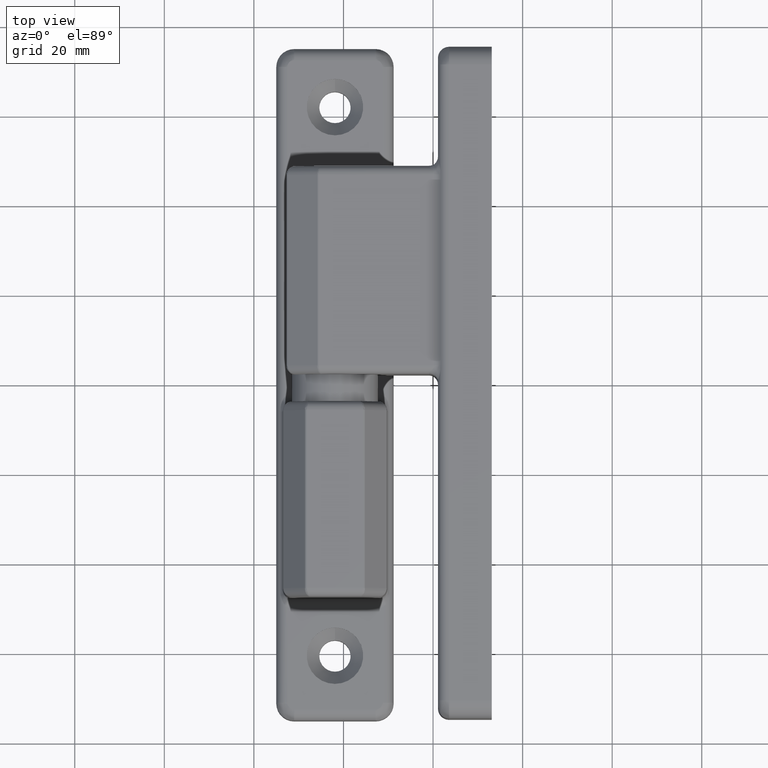
[diagram: clean part render]
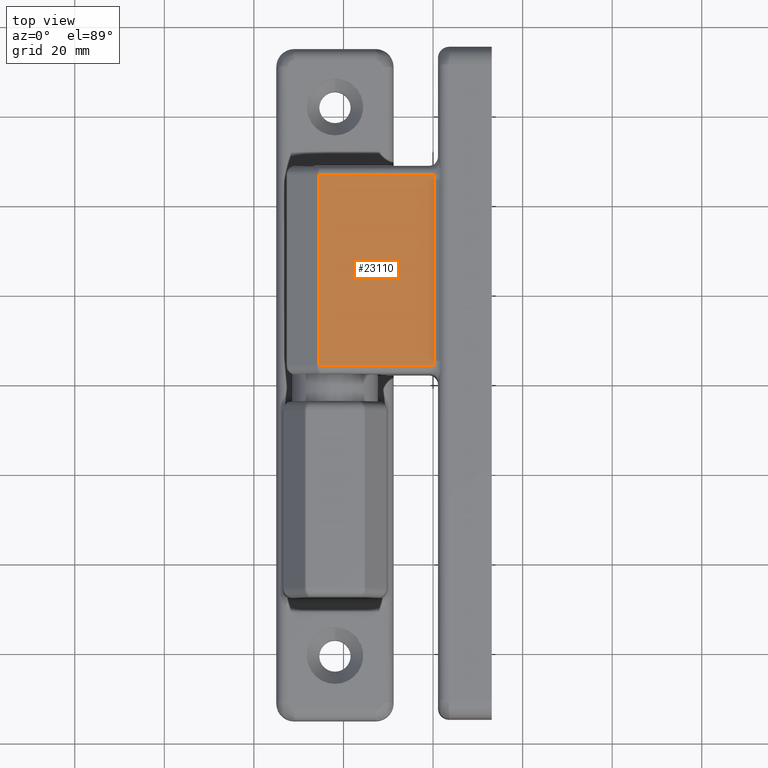
[diagram: same view with one face highlighted and labeled with its STEP entity id]
A machine part, top view. The second image highlights one B-rep face of the part: STEP entity #23110.
In plain terms, the highlighted planar face has unit normal (-0, -0, 1).
Its self-contained STEP definition (entity closure, byte-faithful):
#4600=FACE_OUTER_BOUND('',#6099,.T.);
#6099=EDGE_LOOP('',(#17331,#17332,#17333,#17334));
#7318=LINE('',#60201,#8216);
#7324=LINE('',#60332,#8222);
#7337=LINE('',#60477,#8235);
#7349=LINE('',#60502,#8247);
#8216=VECTOR('',#29052,42.5);
#8222=VECTOR('',#29088,25.7356655070462);
#8235=VECTOR('',#29153,25.7356655070466);
#8247=VECTOR('',#29185,42.5);
#9613=VERTEX_POINT('',#60188);
#9615=VERTEX_POINT('',#60199);
#9627=VERTEX_POINT('',#60330);
#9653=VERTEX_POINT('',#60473);
#12255=EDGE_CURVE('',#9615,#9613,#7318,.T.);
#12275=EDGE_CURVE('',#9627,#9615,#7324,.T.);
#12308=EDGE_CURVE('',#9613,#9653,#7337,.T.);
#12322=EDGE_CURVE('',#9627,#9653,#7349,.T.);
#17331=ORIENTED_EDGE('',*,*,#12255,.F.);
#17332=ORIENTED_EDGE('',*,*,#12275,.F.);
#17333=ORIENTED_EDGE('',*,*,#12322,.T.);
#17334=ORIENTED_EDGE('',*,*,#12308,.F.);
#20850=PLANE('',#25047);
#23110=ADVANCED_FACE('',(#4600),#20850,.T.);
#25047=AXIS2_PLACEMENT_3D('',#60501,#29183,#29184);
#29052=DIRECTION('',(1.83697019872103E-16,1.,0.));
#29088=DIRECTION('',(-6.12323399573676E-17,1.12481983699639E-32,-1.));
#29153=DIRECTION('',(6.12323399573676E-17,-1.12481983699639E-32,1.));
#29183=DIRECTION('center_axis',(-1.,1.83697019872103E-16,6.12323399573676E-17));
#29184=DIRECTION('ref_axis',(0.,0.,1.));
#29185=DIRECTION('',(1.83697019872103E-16,1.,0.));
#60188=CARTESIAN_POINT('',(150.3,-3.89999999999999,12.8541019662497));
#60199=CARTESIAN_POINT('',(150.3,-46.4,12.8541019662497));
#60201=CARTESIAN_POINT('',(150.3,37.45,12.8541019662497));
#60330=CARTESIAN_POINT('',(150.3,-46.4,38.5897674732959));
#60332=CARTESIAN_POINT('',(150.3,-46.4,6.));
#60473=CARTESIAN_POINT('',(150.3,-3.9,38.5897674732963));
#60477=CARTESIAN_POINT('',(150.3,-3.9,6.));
#60501=CARTESIAN_POINT('Origin',(150.3,-48.3,12.));
#60502=CARTESIAN_POINT('',(150.3,-47.8,38.5897674733));